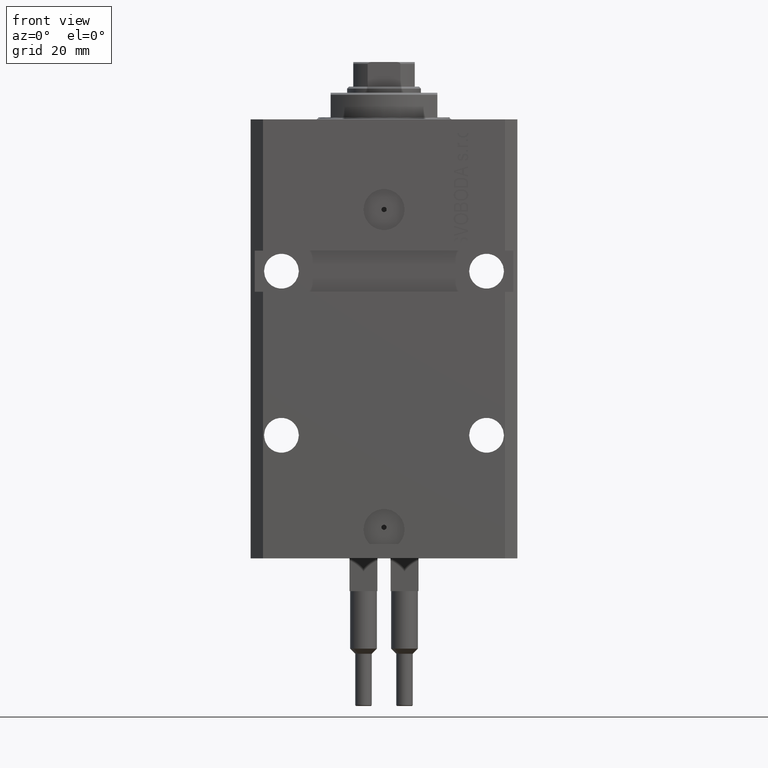
[diagram: clean part render]
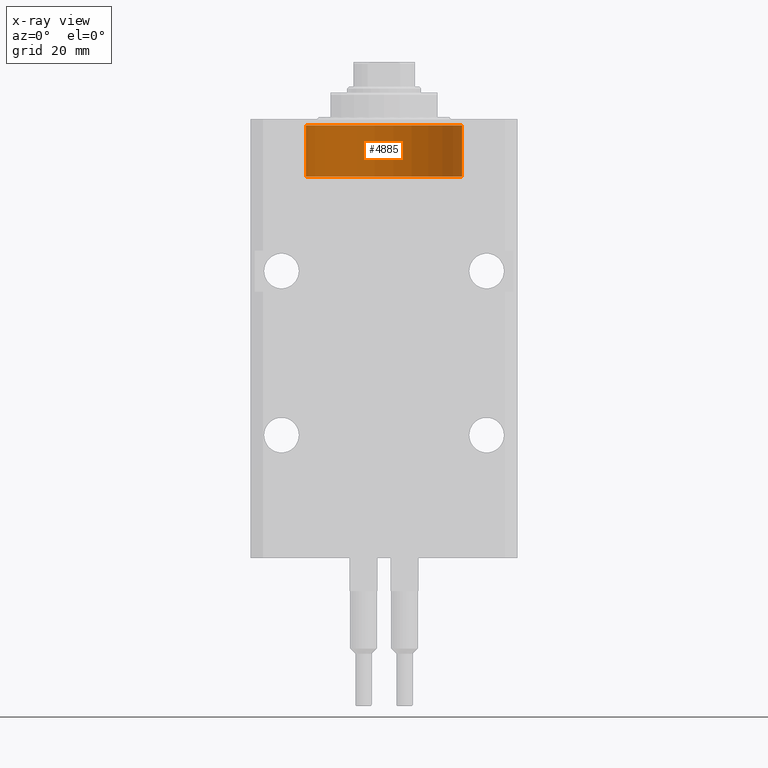
[diagram: x-ray — body ghosted, one internal face saturated and labeled with its STEP entity id]
A machine part, front view, then the same camera in x-ray: the body is ghosted and one INTERNAL B-rep face — a face not visible from any outside direction — is saturated and labeled: STEP entity #4885.
In plain terms, the highlighted cylindrical surface (partial cylindrical patch) has radius 19 mm, axis along (0, -0, 1).
Its self-contained STEP definition (entity closure, byte-faithful):
#3266 = DIRECTION ( 'NONE',  ( -0.000000000000000000, -0.000000000000000000, -1.000000000000000000 ) ) ;
#3960 = FACE_OUTER_BOUND ( 'NONE', #20376, .T. ) ;
#4102 = DIRECTION ( 'NONE',  ( -0.000000000000000000, -0.000000000000000000, 1.000000000000000000 ) ) ;
#4885 = ADVANCED_FACE ( 'NONE', ( #3960 ), #11662, .T. ) ;
#8300 = DIRECTION ( 'NONE',  ( -0.000000000000000000, -0.000000000000000000, -1.000000000000000000 ) ) ;
#9270 = DIRECTION ( 'NONE',  ( 0.000000000000000000, 0.000000000000000000, 1.000000000000000000 ) ) ;
#10409 = VERTEX_POINT ( 'NONE', #24945 ) ;
#10482 = CARTESIAN_POINT ( 'NONE',  ( 19.00000000000000000, 2.326828918379970970E-15, 14.00000000000000000 ) ) ;
#10673 = ORIENTED_EDGE ( 'NONE', *, *, #46267, .F. ) ;
#11379 = EDGE_CURVE ( 'NONE', #41866, #10409, #40255, .T. ) ;
#11662 = CYLINDRICAL_SURFACE ( 'NONE', #41195, 19.00000000000000000 ) ;
#12266 = LINE ( 'NONE', #27643, #28359 ) ;
#13000 = DIRECTION ( 'NONE',  ( 1.000000000000000000, 0.000000000000000000, 0.000000000000000000 ) ) ;
#14047 = CARTESIAN_POINT ( 'NONE',  ( -19.00000000000000000, 0.000000000000000000, 14.00000000000000000 ) ) ;
#14798 = EDGE_CURVE ( 'NONE', #22080, #32896, #12266, .T. ) ;
#15628 = DIRECTION ( 'NONE',  ( -0.000000000000000000, -0.000000000000000000, -1.000000000000000000 ) ) ;
#16827 = VECTOR ( 'NONE', #3266, 1000.000000000000000 ) ;
#19950 = AXIS2_PLACEMENT_3D ( 'NONE', #31573, #4102, #24140 ) ;
#20376 = EDGE_LOOP ( 'NONE', ( #10673, #32755, #45035, #34477 ) ) ;
#22080 = VERTEX_POINT ( 'NONE', #14047 ) ;
#24140 = DIRECTION ( 'NONE',  ( 1.000000000000000000, 0.000000000000000000, 0.000000000000000000 ) ) ;
#24945 = CARTESIAN_POINT ( 'NONE',  ( 19.00000000000000000, 2.326828918379970970E-15, 1.500000000000004885 ) ) ;
#26806 = DIRECTION ( 'NONE',  ( -1.000000000000000000, 0.000000000000000000, 0.000000000000000000 ) ) ;
#27116 = EDGE_CURVE ( 'NONE', #10409, #32896, #41334, .T. ) ;
#27643 = CARTESIAN_POINT ( 'NONE',  ( -19.00000000000000000, 0.000000000000000000, 14.00000000000000000 ) ) ;
#28359 = VECTOR ( 'NONE', #8300, 1000.000000000000000 ) ;
#31019 = CARTESIAN_POINT ( 'NONE',  ( 0.000000000000000000, 0.000000000000000000, 14.00000000000000000 ) ) ;
#31573 = CARTESIAN_POINT ( 'NONE',  ( 0.000000000000000000, 0.000000000000000000, 1.500000000000004885 ) ) ;
#31991 = CIRCLE ( 'NONE', #38308, 19.00000000000000000 ) ;
#32121 = CARTESIAN_POINT ( 'NONE',  ( 0.000000000000000000, 0.000000000000000000, 14.00000000000000000 ) ) ;
#32755 = ORIENTED_EDGE ( 'NONE', *, *, #11379, .T. ) ;
#32896 = VERTEX_POINT ( 'NONE', #33320 ) ;
#33320 = CARTESIAN_POINT ( 'NONE',  ( -19.00000000000000000, 0.000000000000000000, 1.500000000000004885 ) ) ;
#34477 = ORIENTED_EDGE ( 'NONE', *, *, #14798, .F. ) ;
#38308 = AXIS2_PLACEMENT_3D ( 'NONE', #32121, #9270, #13000 ) ;
#40255 = LINE ( 'NONE', #10482, #16827 ) ;
#40520 = CARTESIAN_POINT ( 'NONE',  ( 19.00000000000000000, 2.326828918379970970E-15, 14.00000000000000000 ) ) ;
#41195 = AXIS2_PLACEMENT_3D ( 'NONE', #31019, #15628, #26806 ) ;
#41334 = CIRCLE ( 'NONE', #19950, 19.00000000000000000 ) ;
#41866 = VERTEX_POINT ( 'NONE', #40520 ) ;
#45035 = ORIENTED_EDGE ( 'NONE', *, *, #27116, .T. ) ;
#46267 = EDGE_CURVE ( 'NONE', #41866, #22080, #31991, .T. ) ;